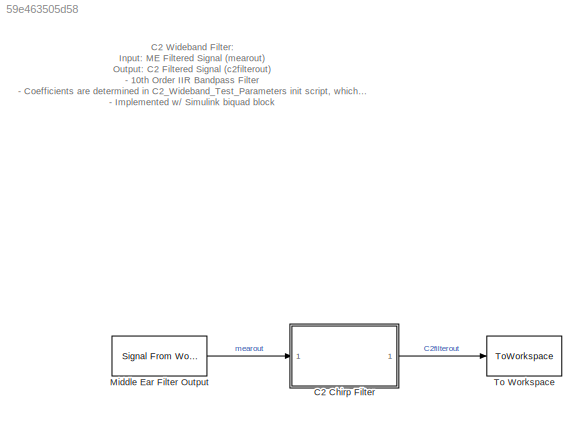
MODEL slx_59e463505d58
KIND model
CONFIG AbsTol = auto
CONFIG EnableMultiTasking = off
CONFIG FixedStep = auto
CONFIG InitFcn = C2_Wideband_Test_Parameters\n
CONFIG MaxStep = auto
CONFIG MinStep = auto
CONFIG RelTol = 1e-3
CONFIG SampleTimeConstraint = Unconstrained
CONFIG Solver = VariableStepAuto
CONFIG SolverName = VariableStepAuto
CONFIG StartTime = 0.0
CONFIG StopFcn = Verify_C2_Wideband_Filter
CONFIG StopTime = testtime
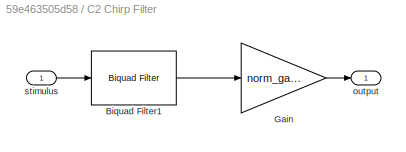
BLOCK [SubSystem] C2 Chirp Filter
  Ports = [1, 1]
  RequestExecContextInheritance = off
  ShowPortLabels = none
BLOCK [Reference] C2 Chirp Filter/Biquad Filter1  REF=dsparch4/Biquad Filter
  Ports = [1, 1]
  SourceBlock = dsparch4/Biquad Filter
  SourceProductBaseCode = DS
  SourceProductName = DSP System Toolbox
  SourceType = Biquad Filter
  UserDataPersistent = on
BLOCK [Gain] C2 Chirp Filter/Gain
  Gain = norm_gainc2/4
  OutDataTypeStr = Inherit: Inherit via internal rule
  ParamDataTypeStr = Inherit: Inherit via internal rule
  SaturateOnIntegerOverflow = off
BLOCK [Outport] C2 Chirp Filter/output
  IconDisplay = Port number
BLOCK [Inport] C2 Chirp Filter/stimulus
  IconDisplay = Port number
BLOCK [Reference] Middle Ear Filter Output  REF=dspsrcs4/Signal From
Workspace
  Ports = [0, 1]
  SourceBlock = dspsrcs4/Signal From\nWorkspace
  SourceProductBaseCode = DS
  SourceProductName = DSP System Toolbox
  SourceType = Signal From Workspace
BLOCK [ToWorkspace] To Workspace
  MaxDataPoints = inf
  Ports = [1]
  SampleTime = -1
  Save2DSignal = 2-D array (concatenate along first dimension)
  VariableName = C2filterout
ANNOTATION (root): C2 Wideband Filter: Input : ME Filtered Signal (mearout) Output : C2 Filtered Signal (c2filterout) - 10th Order IIR Bandpass Filter - Coefficients are determined in C2_Wideband_Test_Parameters init script, which calls the C2Coefficients MATLAB function - Implemented w/ Simulink biquad block
LINE C2 Chirp Filter/Biquad Filter1:1 -> C2 Chirp Filter/Gain:1
LINE C2 Chirp Filter/Gain:1 -> C2 Chirp Filter/output:1
LINE C2 Chirp Filter/stimulus:1 -> C2 Chirp Filter/Biquad Filter1:1
LINE C2 Chirp Filter:1 -> To Workspace:1
LINE Middle Ear Filter Output:1 -> C2 Chirp Filter:1
